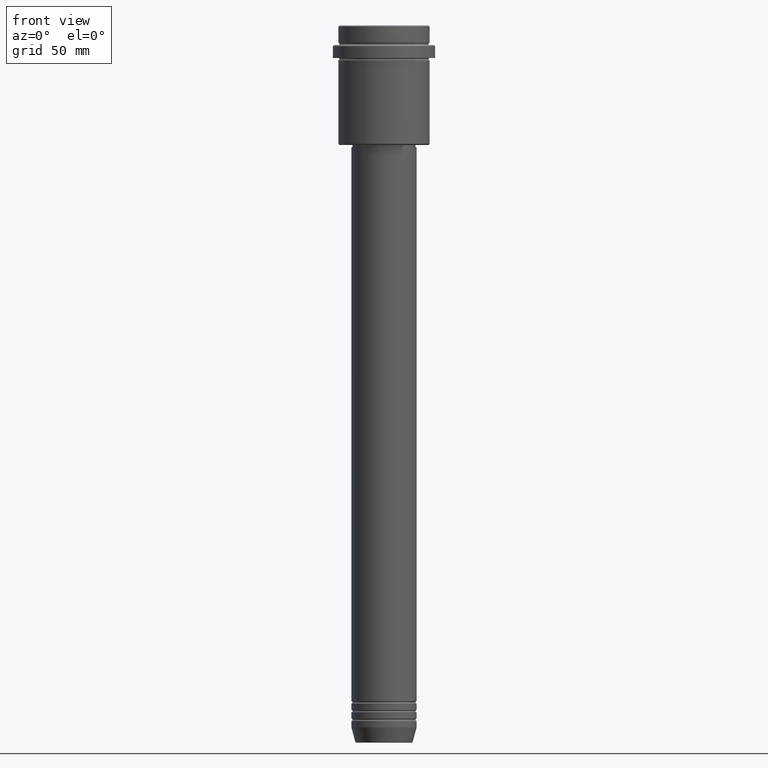
[diagram: clean part render]
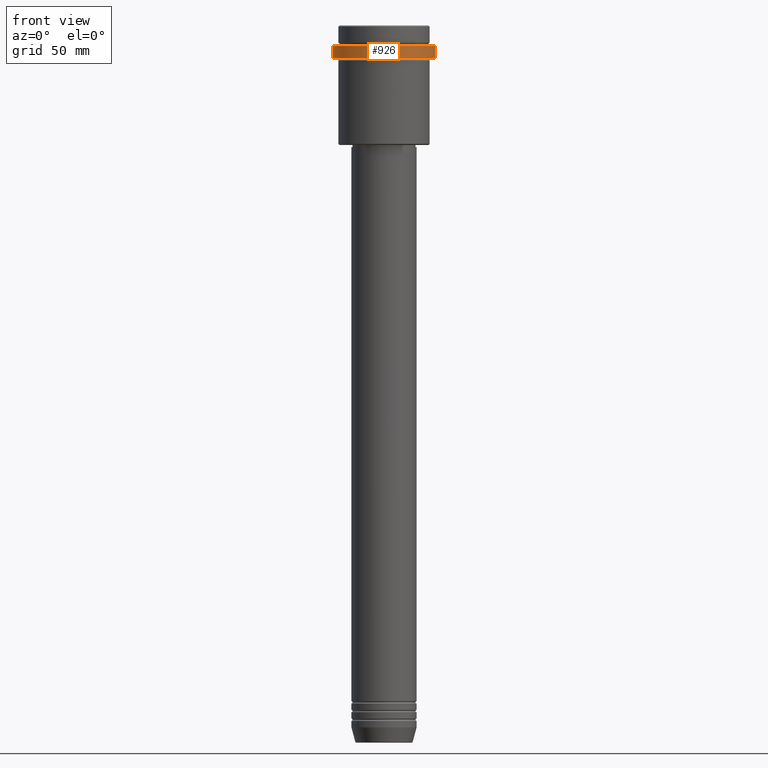
[diagram: same view with one face highlighted and labeled with its STEP entity id]
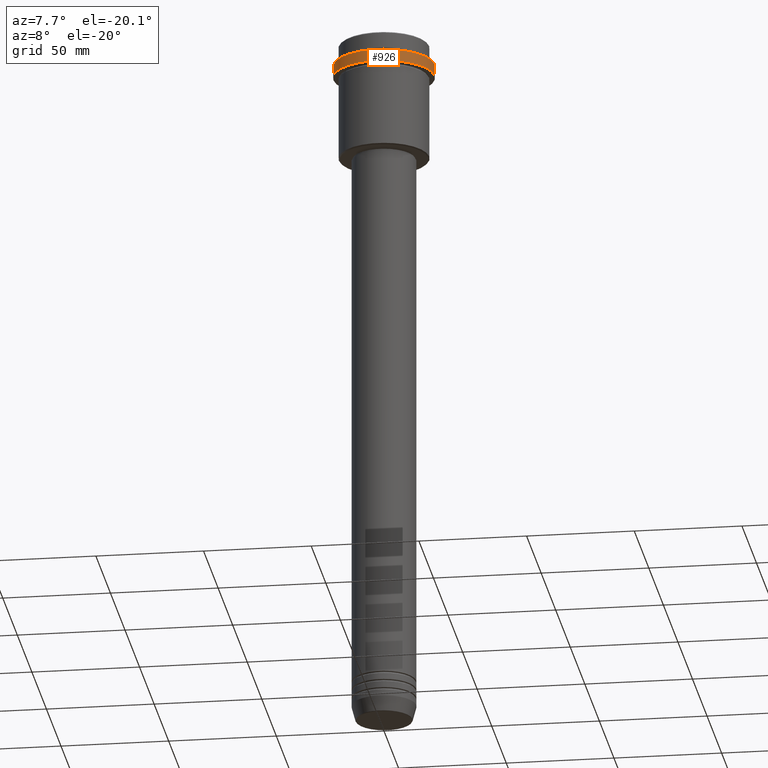
[diagram: same view with one face highlighted and labeled with its STEP entity id]
A machine part, front view. The second image highlights one B-rep face of the part: STEP entity #926.
A second angle (auxiliary view) of the same face is appended — the face is thin or edge-on in the first view.
In plain terms, the highlighted cylindrical surface (partial cylindrical patch) has radius 23.5 mm, axis along (-0, -0, 1).
Its self-contained STEP definition (entity closure, byte-faithful):
#69 = AXIS2_PLACEMENT_3D ( 'NONE', #1098, #650, #1081 ) ;
#147 = VERTEX_POINT ( 'NONE', #1250 ) ;
#178 = ORIENTED_EDGE ( 'NONE', *, *, #222, .T. ) ;
#197 = DIRECTION ( 'NONE',  ( 1.000000000000000000, 0.000000000000000000, 0.000000000000000000 ) ) ;
#222 = EDGE_CURVE ( 'NONE', #1150, #147, #864, .T. ) ;
#282 = ORIENTED_EDGE ( 'NONE', *, *, #1289, .T. ) ;
#326 = VERTEX_POINT ( 'NONE', #424 ) ;
#347 = CYLINDRICAL_SURFACE ( 'NONE', #69, 23.50000000000000000 ) ;
#376 = DIRECTION ( 'NONE',  ( -0.000000000000000000, -0.000000000000000000, 1.000000000000000000 ) ) ;
#424 = CARTESIAN_POINT ( 'NONE',  ( 23.50000000000000355, 0.000000000000000000, -15.00000000000000178 ) ) ;
#453 = FACE_OUTER_BOUND ( 'NONE', #1053, .T. ) ;
#489 = CARTESIAN_POINT ( 'NONE',  ( 0.000000000000000000, 0.000000000000000000, -9.500000000000001776 ) ) ;
#511 = CARTESIAN_POINT ( 'NONE',  ( 23.50000000000000000, 0.000000000000000000, -9.500000000000001776 ) ) ;
#520 = AXIS2_PLACEMENT_3D ( 'NONE', #489, #567, #1006 ) ;
#567 = DIRECTION ( 'NONE',  ( 0.000000000000000000, 0.000000000000000000, -1.000000000000000000 ) ) ;
#627 = EDGE_CURVE ( 'NONE', #767, #147, #722, .T. ) ;
#650 = DIRECTION ( 'NONE',  ( -0.000000000000000000, -0.000000000000000000, 1.000000000000000000 ) ) ;
#722 = LINE ( 'NONE', #917, #886 ) ;
#732 = CARTESIAN_POINT ( 'NONE',  ( 23.50000000000000000, 0.000000000000000000, 0.000000000000000000 ) ) ;
#767 = VERTEX_POINT ( 'NONE', #873 ) ;
#825 = VECTOR ( 'NONE', #1070, 1000.000000000000000 ) ;
#837 = CARTESIAN_POINT ( 'NONE',  ( 0.000000000000000000, 0.000000000000000000, -15.00000000000000178 ) ) ;
#850 = LINE ( 'NONE', #732, #825 ) ;
#864 = CIRCLE ( 'NONE', #520, 23.50000000000000000 ) ;
#873 = CARTESIAN_POINT ( 'NONE',  ( -23.50000000000000711, 2.877919977996281109E-15, -15.00000000000000178 ) ) ;
#886 = VECTOR ( 'NONE', #376, 1000.000000000000000 ) ;
#917 = CARTESIAN_POINT ( 'NONE',  ( -23.50000000000000000, 2.877919977996280320E-15, 0.000000000000000000 ) ) ;
#926 = ADVANCED_FACE ( 'NONE', ( #453 ), #347, .T. ) ;
#1006 = DIRECTION ( 'NONE',  ( 1.000000000000000000, 0.000000000000000000, 0.000000000000000000 ) ) ;
#1049 = ORIENTED_EDGE ( 'NONE', *, *, #627, .F. ) ;
#1053 = EDGE_LOOP ( 'NONE', ( #1049, #282, #1056, #178 ) ) ;
#1056 = ORIENTED_EDGE ( 'NONE', *, *, #1193, .T. ) ;
#1070 = DIRECTION ( 'NONE',  ( -0.000000000000000000, -0.000000000000000000, 1.000000000000000000 ) ) ;
#1081 = DIRECTION ( 'NONE',  ( 1.000000000000000000, 0.000000000000000000, 0.000000000000000000 ) ) ;
#1089 = AXIS2_PLACEMENT_3D ( 'NONE', #837, #1275, #197 ) ;
#1098 = CARTESIAN_POINT ( 'NONE',  ( 0.000000000000000000, 0.000000000000000000, 0.000000000000000000 ) ) ;
#1150 = VERTEX_POINT ( 'NONE', #511 ) ;
#1180 = CIRCLE ( 'NONE', #1089, 23.50000000000000355 ) ;
#1193 = EDGE_CURVE ( 'NONE', #326, #1150, #850, .T. ) ;
#1250 = CARTESIAN_POINT ( 'NONE',  ( -23.50000000000000000, 2.877919977996280320E-15, -9.500000000000001776 ) ) ;
#1275 = DIRECTION ( 'NONE',  ( -0.000000000000000000, -0.000000000000000000, 1.000000000000000000 ) ) ;
#1289 = EDGE_CURVE ( 'NONE', #767, #326, #1180, .T. ) ;